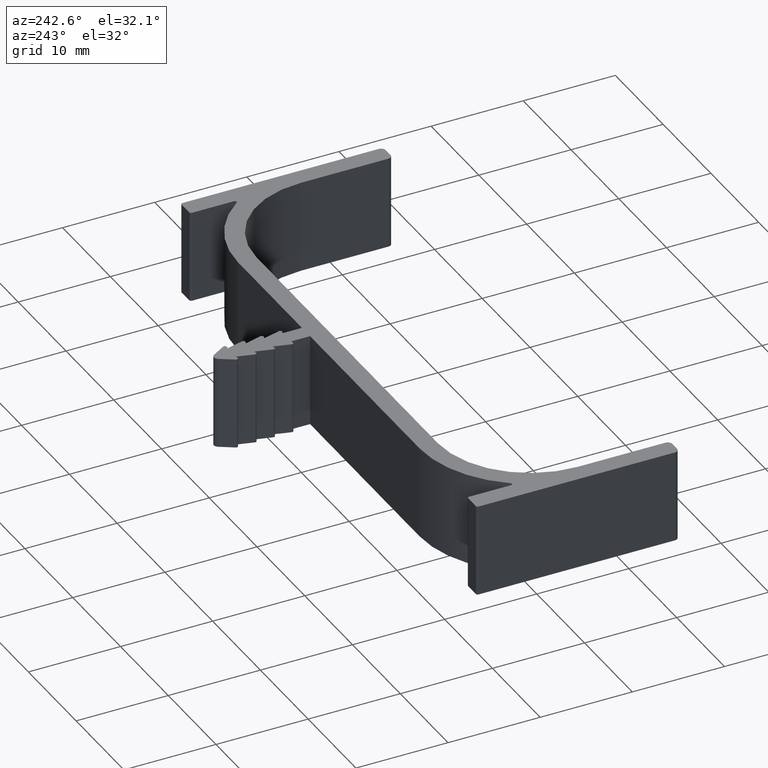
[diagram: clean part render]
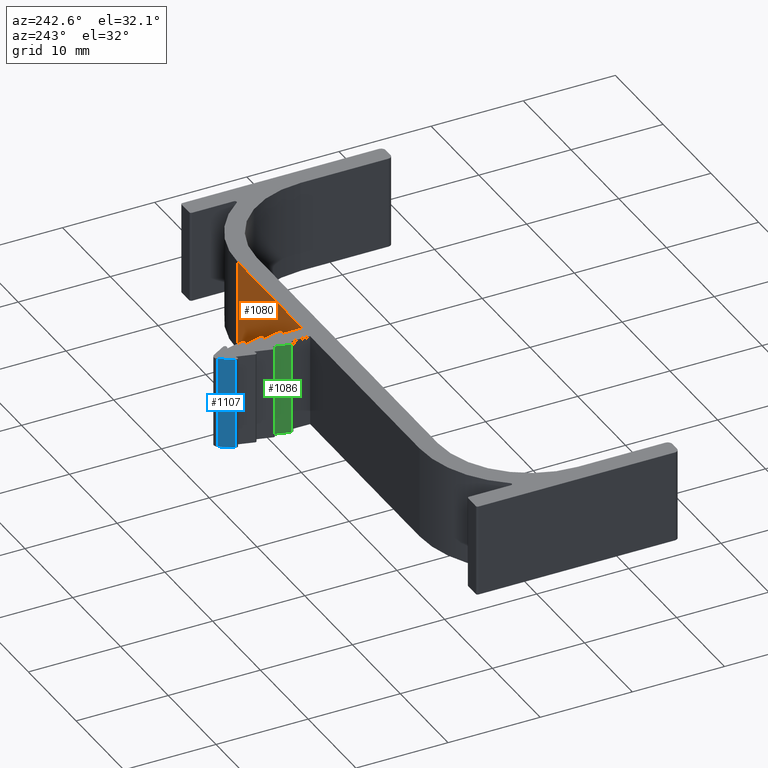
[diagram: same view with three faces highlighted in distinct colors, each labeled with its STEP entity id]
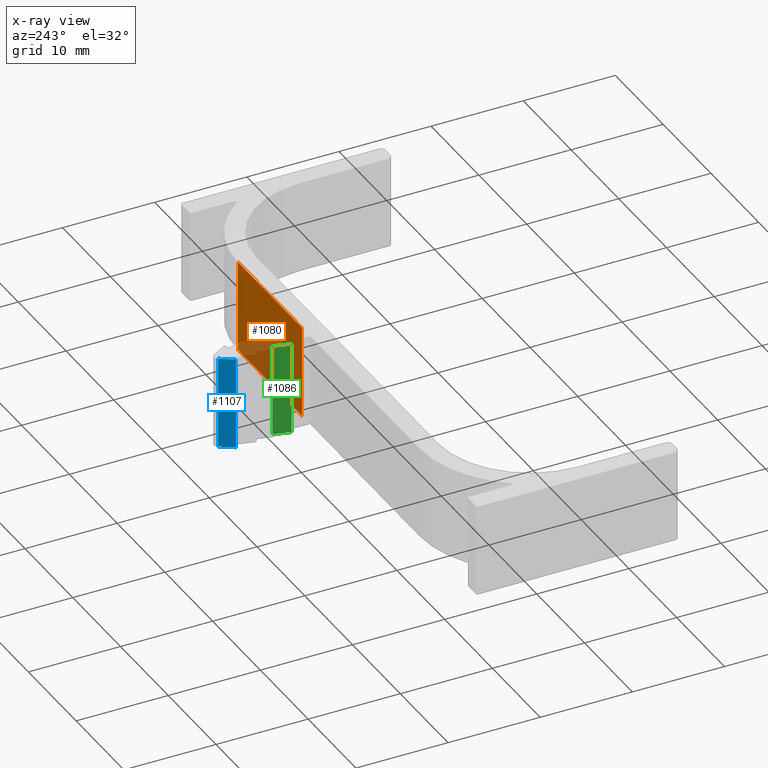
[diagram: x-ray of the same camera — body ghosted, the three highlighted faces saturated]
A machine part, auxiliary view with three faces highlighted in distinct colors.
The next image is the same camera in x-ray (body ghosted, the three faces saturated) — at least one of them is partly hidden behind the body in this view.
Their STEP definitions:

[orange] entity #1080 — the highlighted planar face has unit normal (-0, -1, 0).
#27=PLANE('',#1184);
#73=FACE_OUTER_BOUND('',#129,.T.);
#129=EDGE_LOOP('',(#908,#909,#910,#911));
#181=LINE('',#1606,#297);
#216=LINE('',#1727,#332);
#247=LINE('',#1804,#363);
#248=LINE('',#1806,#364);
#297=VECTOR('',#1264,13.4);
#332=VECTOR('',#1375,13.4);
#363=VECTOR('',#1446,10.);
#364=VECTOR('',#1449,10.);
#470=VERTEX_POINT('',#1603);
#471=VERTEX_POINT('',#1605);
#518=VERTEX_POINT('',#1724);
#519=VERTEX_POINT('',#1726);
#578=EDGE_CURVE('',#470,#471,#181,.T.);
#639=EDGE_CURVE('',#518,#519,#216,.T.);
#679=EDGE_CURVE('',#471,#518,#247,.T.);
#680=EDGE_CURVE('',#519,#470,#248,.T.);
#908=ORIENTED_EDGE('',*,*,#639,.F.);
#909=ORIENTED_EDGE('',*,*,#679,.F.);
#910=ORIENTED_EDGE('',*,*,#578,.F.);
#911=ORIENTED_EDGE('',*,*,#680,.F.);
#1080=ADVANCED_FACE('',(#73),#27,.F.);
#1184=AXIS2_PLACEMENT_3D('',#1805,#1447,#1448);
#1264=DIRECTION('',(1.,-4.45872700652673E-17,0.));
#1375=DIRECTION('',(-1.,4.45872700652673E-17,0.));
#1446=DIRECTION('',(0.,0.,1.));
#1447=DIRECTION('center_axis',(-4.45872700652673E-17,-1.,0.));
#1448=DIRECTION('ref_axis',(0.,0.,-1.));
#1449=DIRECTION('',(0.,0.,-1.));
#1603=CARTESIAN_POINT('',(-2.39999999999999,5.99999999999999,-5.));
#1605=CARTESIAN_POINT('',(11.,5.99999999999999,-5.));
#1606=CARTESIAN_POINT('',(14.3205128205128,5.99999999999999,-5.));
#1724=CARTESIAN_POINT('',(11.,5.99999999999999,5.));
#1726=CARTESIAN_POINT('',(-2.39999999999999,5.99999999999999,5.));
#1727=CARTESIAN_POINT('',(14.3205128205128,5.99999999999999,5.));
#1804=CARTESIAN_POINT('',(11.,5.99999999999999,5.));
#1805=CARTESIAN_POINT('Origin',(23.,5.99999999999999,0.));
#1806=CARTESIAN_POINT('',(-2.39999999999999,5.99999999999999,5.));

[blue] entity #1107 — the highlighted planar face has unit normal (0.8522, -0.5231, 0).
#45=PLANE('',#1211);
#100=FACE_OUTER_BOUND('',#156,.T.);
#156=EDGE_LOOP('',(#1016,#1017,#1018,#1019));
#171=LINE('',#1576,#287);
#226=LINE('',#1757,#342);
#267=LINE('',#1839,#383);
#269=LINE('',#1842,#385);
#287=VECTOR('',#1244,1.70953209972788);
#342=VECTOR('',#1395,1.70953209972788);
#383=VECTOR('',#1496,10.);
#385=VECTOR('',#1500,10.);
#455=VERTEX_POINT('',#1573);
#456=VERTEX_POINT('',#1575);
#533=VERTEX_POINT('',#1754);
#534=VERTEX_POINT('',#1756);
#563=EDGE_CURVE('',#455,#456,#171,.T.);
#654=EDGE_CURVE('',#533,#534,#226,.T.);
#699=EDGE_CURVE('',#533,#456,#267,.T.);
#701=EDGE_CURVE('',#534,#455,#269,.T.);
#1016=ORIENTED_EDGE('',*,*,#563,.F.);
#1017=ORIENTED_EDGE('',*,*,#701,.F.);
#1018=ORIENTED_EDGE('',*,*,#654,.F.);
#1019=ORIENTED_EDGE('',*,*,#699,.T.);
#1107=ADVANCED_FACE('',(#100),#45,.F.);
#1211=AXIS2_PLACEMENT_3D('',#1859,#1528,#1529);
#1244=DIRECTION('',(0.523140884543421,0.852246217309955,0.));
#1395=DIRECTION('',(-0.523140884543421,-0.852246217309955,0.));
#1496=DIRECTION('',(0.,0.,-1.));
#1500=DIRECTION('',(0.,0.,-1.));
#1528=DIRECTION('center_axis',(0.852246217309955,-0.523140884543421,0.));
#1529=DIRECTION('ref_axis',(0.,0.,-1.));
#1573=CARTESIAN_POINT('',(-4.57044924346199,14.3046281769087,-5.));
#1575=CARTESIAN_POINT('',(-3.67612310865498,15.7615704422717,-5.));
#1576=CARTESIAN_POINT('',(-5.1044407201939,13.434705313744,-5.));
#1754=CARTESIAN_POINT('',(-3.67612310865498,15.7615704422717,5.));
#1756=CARTESIAN_POINT('',(-4.57044924346199,14.3046281769087,5.));
#1757=CARTESIAN_POINT('',(-5.1044407201939,13.434705313744,5.));
#1839=CARTESIAN_POINT('',(-3.67612310865498,15.7615704422717,5.));
#1842=CARTESIAN_POINT('',(-4.57044924346199,14.3046281769087,5.));
#1859=CARTESIAN_POINT('Origin',(-4.57044924346199,14.3046281769087,5.));

[green] entity #1086 — the highlighted planar face has unit normal (0.9652, -0.2613, 0).
#30=PLANE('',#1190);
#79=FACE_OUTER_BOUND('',#135,.T.);
#135=EDGE_LOOP('',(#932,#933,#934,#935));
#165=LINE('',#1558,#281);
#232=LINE('',#1775,#348);
#257=LINE('',#1821,#373);
#258=LINE('',#1822,#374);
#281=VECTOR('',#1232,1.88662754582757);
#348=VECTOR('',#1407,1.88662754582757);
#373=VECTOR('',#1470,10.);
#374=VECTOR('',#1471,10.);
#446=VERTEX_POINT('',#1555);
#447=VERTEX_POINT('',#1557);
#542=VERTEX_POINT('',#1772);
#543=VERTEX_POINT('',#1774);
#554=EDGE_CURVE('',#446,#447,#165,.T.);
#663=EDGE_CURVE('',#542,#543,#232,.T.);
#689=EDGE_CURVE('',#543,#446,#257,.T.);
#690=EDGE_CURVE('',#542,#447,#258,.T.);
#932=ORIENTED_EDGE('',*,*,#554,.F.);
#933=ORIENTED_EDGE('',*,*,#689,.F.);
#934=ORIENTED_EDGE('',*,*,#663,.F.);
#935=ORIENTED_EDGE('',*,*,#690,.T.);
#1086=ADVANCED_FACE('',(#79),#30,.F.);
#1190=AXIS2_PLACEMENT_3D('',#1820,#1468,#1469);
#1232=DIRECTION('',(0.261339030899933,0.965247072478484,0.));
#1407=DIRECTION('',(-0.261339030899933,-0.965247072478484,0.));
#1468=DIRECTION('center_axis',(0.965247072478484,-0.261339030899933,0.));
#1469=DIRECTION('ref_axis',(0.,0.,-1.));
#1470=DIRECTION('',(0.,0.,-1.));
#1471=DIRECTION('',(0.,0.,-1.));
#1555=CARTESIAN_POINT('',(-4.5930494144957,8.25226780617999,-5.));
#1557=CARTESIAN_POINT('',(-4.1,10.0733295216473,-5.));
#1558=CARTESIAN_POINT('',(-4.57291724042734,8.32662532566412,-5.));
#1772=CARTESIAN_POINT('',(-4.1,10.0733295216473,5.));
#1774=CARTESIAN_POINT('',(-4.5930494144957,8.25226780617999,5.));
#1775=CARTESIAN_POINT('',(-4.57291724042734,8.32662532566412,5.));
#1820=CARTESIAN_POINT('Origin',(-4.5930494144957,8.25226780617999,5.));
#1821=CARTESIAN_POINT('',(-4.5930494144957,8.25226780617999,5.));
#1822=CARTESIAN_POINT('',(-4.1,10.0733295216473,5.));